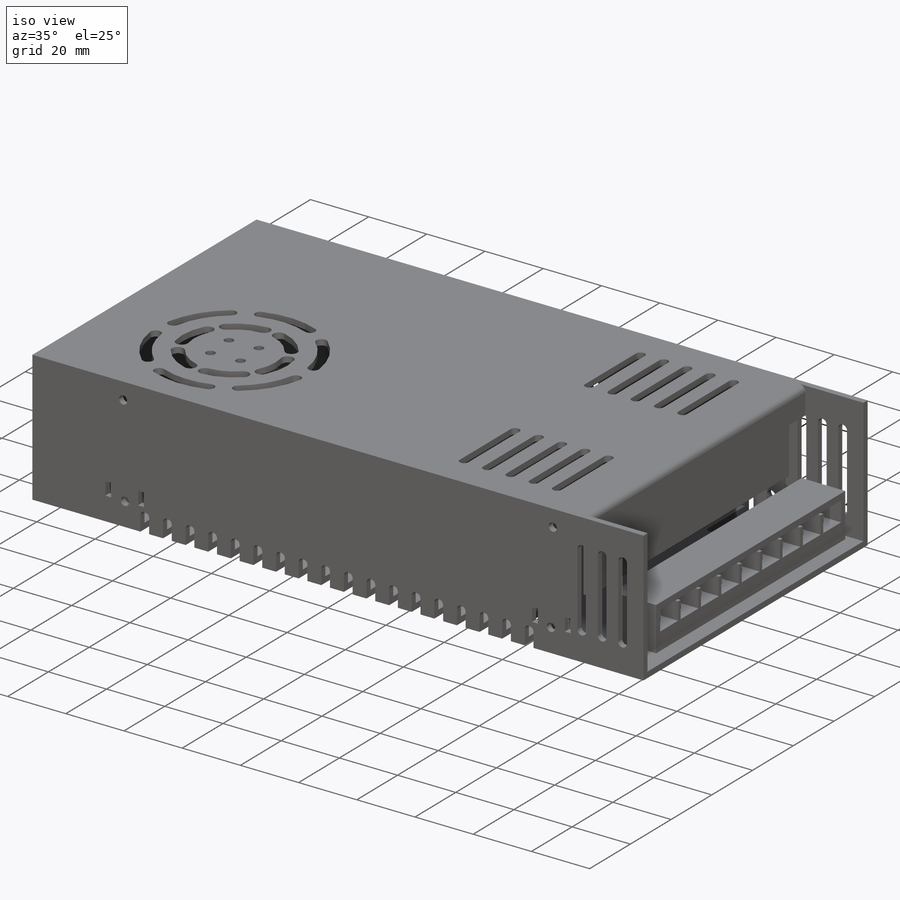
[diagram: iso view]
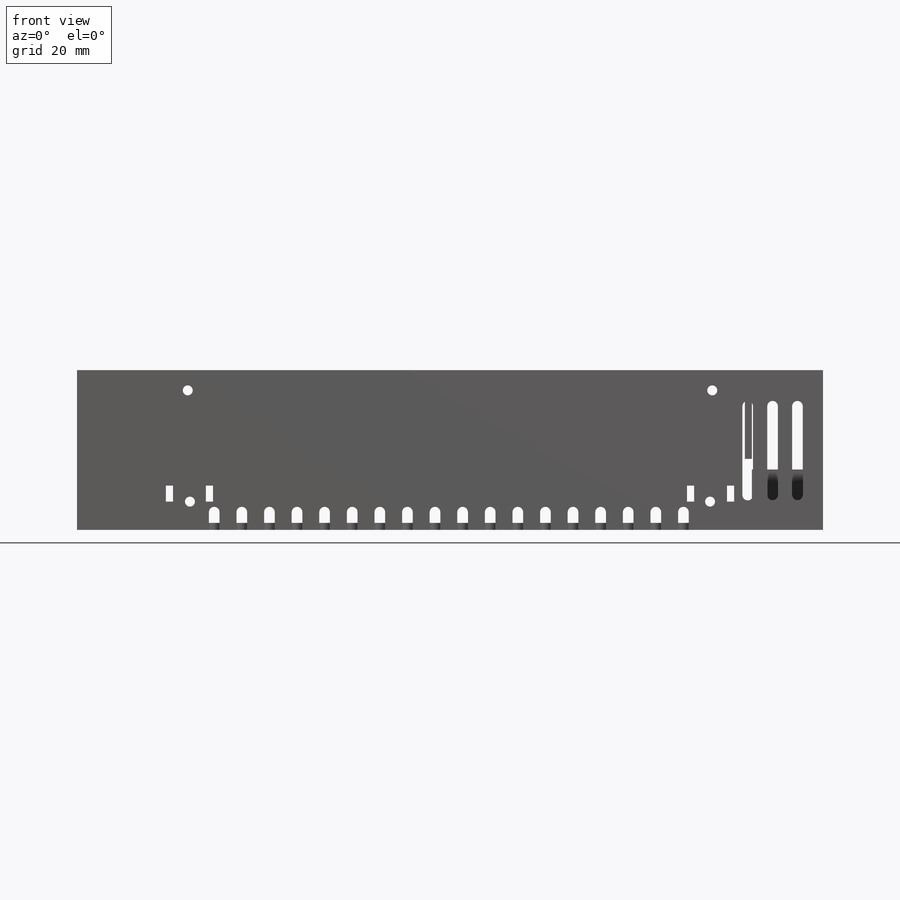
[diagram: front view]
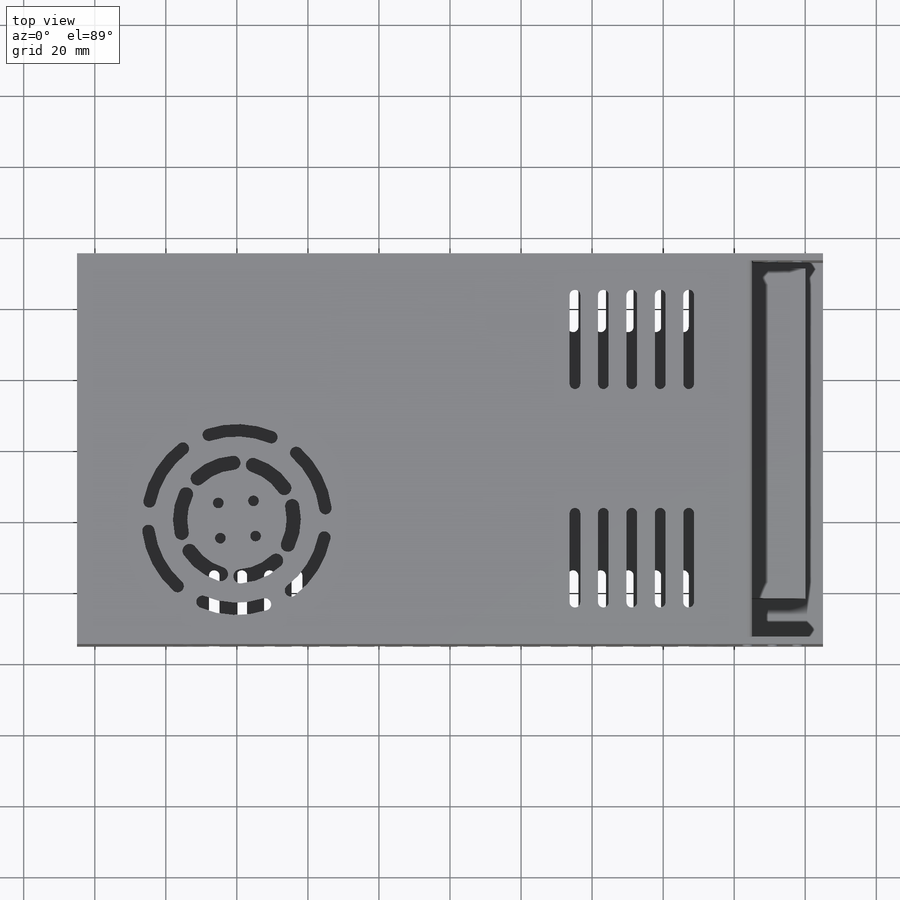
[diagram: top view]
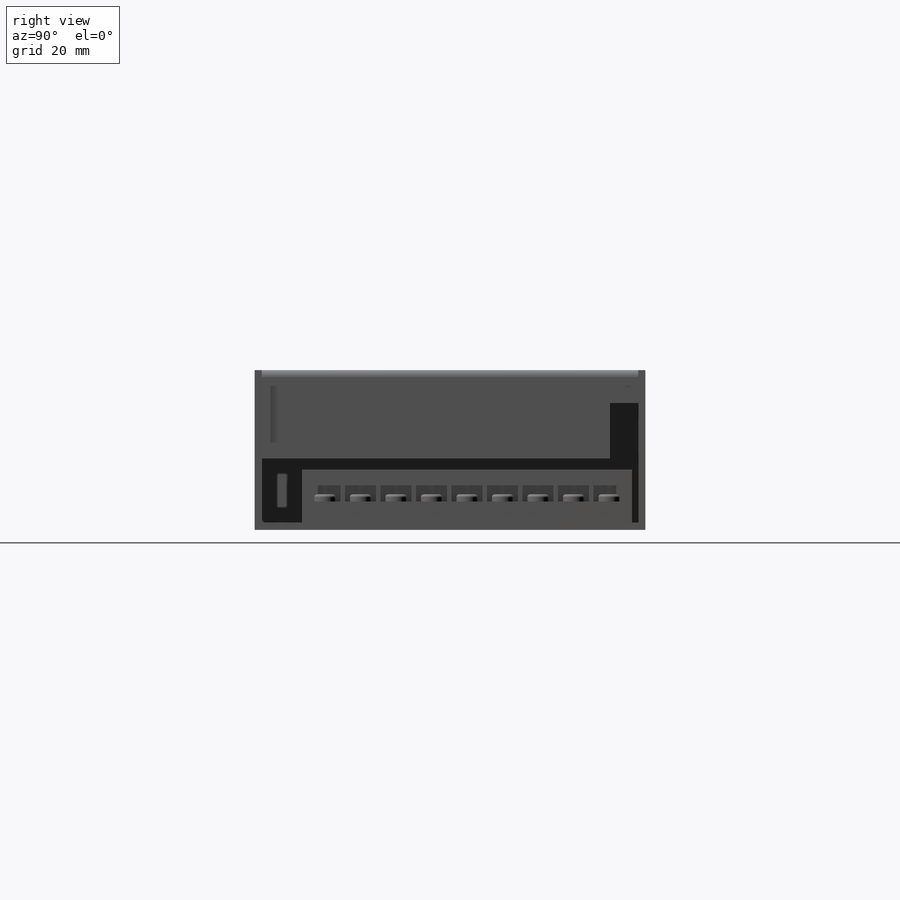
[diagram: right view]
SOLIDWORKS PART (.sldprt)
format: sldprt  version: not decoded by parser v0  size: 1,019,904 bytes
history: native  units: mm
features: sketch x19, cut_extrude x11, extrude x8, pattern_linear x6, mirror x4, pattern_circular x3, fillet x2, material x1, shell x1 (+13 scaffold rows collapsed)
feature tree (68):
  scaffold x13  (default folders/planes/origin — collapsed)
  material  "Material <not specified>"
  sketch  "Sketch1"  dims[D1=110.0mm]
  extrude  "Boss-Extrude1"  Depth=45mm
  shell  "Shell1"  Thickness=2mm
  sketch  "Sketch2"  dims[D1=20.0mm]
  cut_extrude  "Cut-Extrude1"  Depth=5mm
  sketch  "Sketch3"  dims[D1=2.0mm]
  extrude  "Boss-Extrude2"  Depth=25mm
  fillet  "Fillet1"  Radius=2mm
  sketch  "Sketch5"  dims[D1=25.0mm]
  cut_extrude  "Cut-Extrude2"  Depth=10mm
  pattern_linear  "LPattern1"  Count1=5 Count2=1 Spacing1=8mm Spacing2=10mm
  mirror  "Mirror1"
  sketch  "Sketch6"  dims[c1.D1=20.0mm c2.D1=~37.75034deg c3.D1=0.0mm c4.D1=40.0deg]
  cut_extrude  "Cut-Extrude3"  Depth=10mm
  sketch  "Sketch7"  dims[D1=~2.041877mm]
  extrude  "Boss-Extrude3"  Depth=10mm
  pattern_circular  "CirPattern1"  Count=6 Angle=60deg
  sketch  "Sketch8"  dims[c1.D1=2.0mm c2.D1=~41.054576deg]
  cut_extrude  "Cut-Extrude4"  Depth=10mm
  pattern_circular  "CirPattern2"  Count=6 Angle=60deg
  sketch  "Sketch9"  dims[D1=~2.578001mm]
  cut_extrude  "Cut-Extrude5"  Depth=10mm
  pattern_circular  "CirPattern3"  Count=4 Angle=90deg
  sketch  "Sketch11"
  cut_extrude  "Cut-Extrude7"  Depth=34mm
  sketch  "Sketch12"  dims[D1=25.0mm]
  cut_extrude  "Cut-Extrude8"  Depth=10mm
  pattern_linear  "LPattern2"  Count1=3 Count2=1 Spacing1=7mm Spacing2=10mm
  sketch  "Sketch14"  dims[D1=0.0mm]
  extrude  "Boss-Extrude4"  [1 undecoded]
  sketch  "Sketch15"  dims[D1=4.5mm]
  cut_extrude  "Cut-Extrude9"  Depth=12mm
  mirror  "Mirror2"
  mirror  "Mirror3"
  sketch  "Sketch16"  dims[D1=9.0mm]
  cut_extrude  "Cut-Extrude10"  Depth=12mm
  sketch  "Sketch17"  dims[D1=20.0mm]
  cut_extrude  "Cut-Extrude11"  Depth=5mm
  pattern_linear  "LPattern3"  Count1=18 Count2=1 Spacing1=7.77mm Spacing2=10mm
  mirror  "Mirror4"
  sketch  "Sketch18"
  cut_extrude  "Cut-Extrude12"  [1 undecoded]
  pattern_linear  "LPattern4"  Count1=18 Count2=1 Spacing1=7.77mm Spacing2=10mm
  sketch  "Sketch20"  dims[D1=0.6mm]
  extrude  "Boss-Extrude5"  Depth=15mm
  pattern_linear  "LPattern5"  Count1=9 Count2=1 Spacing1=10mm Spacing2=10mm
  sketch  "Sketch21"  dims[D1=2.0mm]
  extrude  "Boss-Extrude6"  Depth=15mm
  sketch  "Sketch22"  dims[D1=2.2mm]
  extrude  "Boss-Extrude7"  [1 undecoded]
  sketch  "Sketch23"  dims[D1=~2.776629mm]
  extrude  "Boss-Extrude8"  Depth=2mm
  fillet  "Fillet2"  Radius=0.8mm
  pattern_linear  "LPattern6"  Count1=9 Count2=1 Spacing1=10mm Spacing2=10mm
decode coverage: 45 of 54 modeling features carry decoded parameters
note: ~ marks probable driven/reference dimensions
note: 3 parameter values undecoded
summary: no parameter record found for 3 features
note: suppression state not decoded; provenance and decode notes live in map.json
